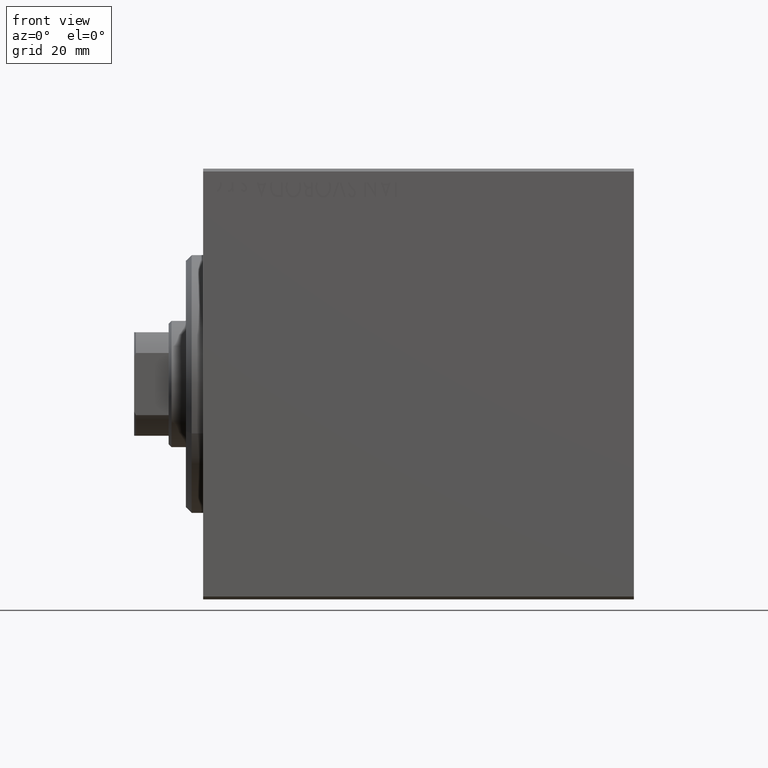
[diagram: clean part render]
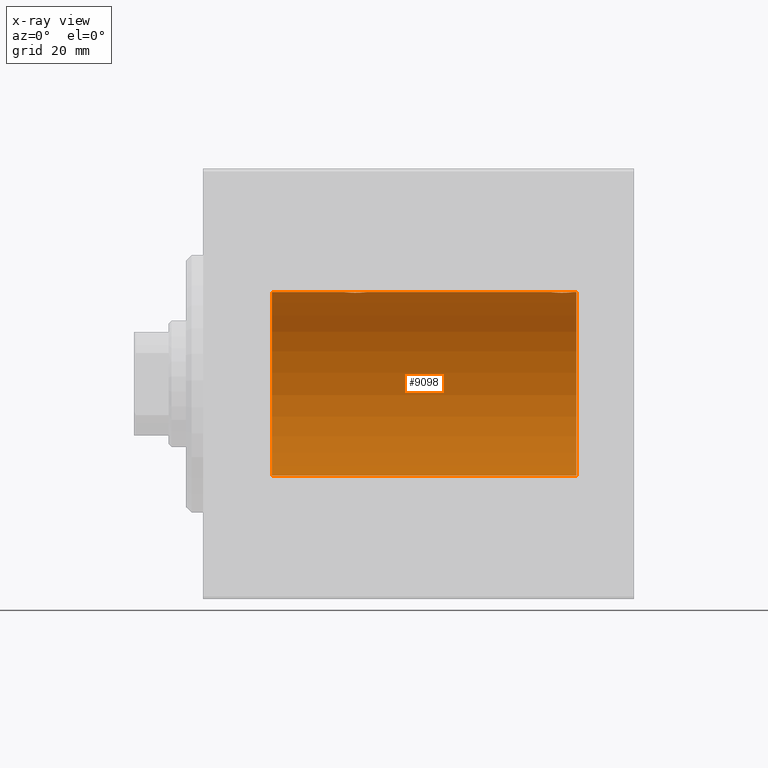
[diagram: x-ray — body ghosted, one internal face saturated and labeled with its STEP entity id]
A machine part, front view, then the same camera in x-ray: the body is ghosted and one INTERNAL B-rep face — a face not visible from any outside direction — is saturated and labeled: STEP entity #9098.
In plain terms, the highlighted cylindrical surface (partial cylindrical patch) has radius 16 mm, axis along (-1, -0, -0).
Its self-contained STEP definition (entity closure, byte-faithful):
#108 = CARTESIAN_POINT ( 'NONE',  ( 65.00000000000000000, 0.000000000000000000, 0.000000000000000000 ) ) ;
#368 = LINE ( 'NONE', #23722, #35566 ) ;
#507 = CARTESIAN_POINT ( 'NONE',  ( 27.02531756459404733, 1.947280337074166257, 15.88137861827786423 ) ) ;
#1265 = ORIENTED_EDGE ( 'NONE', *, *, #19076, .T. ) ;
#1481 = EDGE_CURVE ( 'NONE', #14752, #8152, #42652, .T. ) ;
#1622 = CARTESIAN_POINT ( 'NONE',  ( 26.37014691649502041, 2.000047931387144207, 15.87450182760079542 ) ) ;
#1660 = AXIS2_PLACEMENT_3D ( 'NONE', #30940, #41384, #21125 ) ;
#1694 = CARTESIAN_POINT ( 'NONE',  ( 60.60216273501104922, 0.6445079780200505537, 15.98747331501412816 ) ) ;
#2120 = CARTESIAN_POINT ( 'NONE',  ( 62.37014691649503817, 2.000047931387135325, 15.87450182760080253 ) ) ;
#2335 = CARTESIAN_POINT ( 'NONE',  ( 61.28032342557722245, 1.590393755195997016, 15.92092783521423272 ) ) ;
#3001 = DIRECTION ( 'NONE',  ( -1.000000000000000000, 0.000000000000000000, 0.000000000000000000 ) ) ;
#3169 = VECTOR ( 'NONE', #35447, 1000.000000000000000 ) ;
#3361 = CARTESIAN_POINT ( 'NONE',  ( 60.50000000000000711, 0.1305944228192292556, 15.99999999999999645 ) ) ;
#3564 = EDGE_LOOP ( 'NONE', ( #24956, #23020, #36615, #1265, #40063, #17977, #13601, #26405 ) ) ;
#4203 = CARTESIAN_POINT ( 'NONE',  ( 11.99999999999999645, 0.000000000000000000, 16.00000000000000000 ) ) ;
#4269 = AXIS2_PLACEMENT_3D ( 'NONE', #108, #3001, #43273 ) ;
#4727 = CARTESIAN_POINT ( 'NONE',  ( 25.61382242942730159, 1.797743958659259400, 15.89876304682112007 ) ) ;
#5601 = CARTESIAN_POINT ( 'NONE',  ( 24.56430947073870641, 0.5198215460038738689, 15.99206840425679665 ) ) ;
#5672 = CARTESIAN_POINT ( 'NONE',  ( 64.09051504852095604, 1.219564485341764648, 15.95382484008322344 ) ) ;
#5909 = CIRCLE ( 'NONE', #12287, 16.00000000000000000 ) ;
#6487 = DIRECTION ( 'NONE',  ( 0.000000000000000000, 0.000000000000000000, 1.000000000000000000 ) ) ;
#6636 = VERTEX_POINT ( 'NONE', #18046 ) ;
#6962 = CARTESIAN_POINT ( 'NONE',  ( 28.49999999999999645, -1.179009551424829015E-15, 16.00000000000000000 ) ) ;
#6971 = VERTEX_POINT ( 'NONE', #4203 ) ;
#7188 = CARTESIAN_POINT ( 'NONE',  ( 28.39758870055593221, 0.6452446332038169752, 15.98744362947834929 ) ) ;
#7610 = CARTESIAN_POINT ( 'NONE',  ( 65.00000000000000000, 0.000000000000000000, 16.00000000000000000 ) ) ;
#8152 = VERTEX_POINT ( 'NONE', #17001 ) ;
#8290 = CARTESIAN_POINT ( 'NONE',  ( 65.00000000000000000, 0.000000000000000000, 16.00000000000000000 ) ) ;
#8291 = CARTESIAN_POINT ( 'NONE',  ( 26.76191462762254858, 1.999903730784158284, 15.87451999516785861 ) ) ;
#8358 = CARTESIAN_POINT ( 'NONE',  ( 61.98086902289888656, 1.935876924222072359, 15.88247600692093187 ) ) ;
#8802 = CARTESIAN_POINT ( 'NONE',  ( 61.49688752964961935, 1.735145127817737887, 15.90580292899658410 ) ) ;
#9098 = ADVANCED_FACE ( 'NONE', ( #34288 ), #34727, .F. ) ;
#10961 = CARTESIAN_POINT ( 'NONE',  ( 28.48700524008413026, 0.2623312429553321667, 15.99836091803360105 ) ) ;
#11021 = VERTEX_POINT ( 'NONE', #21140 ) ;
#11388 = CARTESIAN_POINT ( 'NONE',  ( 24.50000000000000000, -2.739674480787312950E-23, 16.00000000000000000 ) ) ;
#11910 = CARTESIAN_POINT ( 'NONE',  ( 60.56430947073870641, 0.5198215460038713154, 15.99206840425679310 ) ) ;
#12269 = LINE ( 'NONE', #8290, #17020 ) ;
#12287 = AXIS2_PLACEMENT_3D ( 'NONE', #35962, #36168, #6487 ) ;
#12688 = LINE ( 'NONE', #15597, #3169 ) ;
#13147 = CARTESIAN_POINT ( 'NONE',  ( 64.43611326682061247, 0.5181437283162071417, 15.99211983514074653 ) ) ;
#13601 = ORIENTED_EDGE ( 'NONE', *, *, #26209, .T. ) ;
#14752 = VERTEX_POINT ( 'NONE', #7610 ) ;
#15171 = CARTESIAN_POINT ( 'NONE',  ( 25.28032342557722245, 1.590393755196002568, 15.92092783521424337 ) ) ;
#15527 = VERTEX_POINT ( 'NONE', #38829 ) ;
#15597 = CARTESIAN_POINT ( 'NONE',  ( 65.00000000000000000, 0.000000000000000000, 16.00000000000000000 ) ) ;
#15816 = CARTESIAN_POINT ( 'NONE',  ( 25.17924175171067347, 1.507649250492133275, 15.92908549642226745 ) ) ;
#16693 = CARTESIAN_POINT ( 'NONE',  ( 64.49999999999998579, 3.473195124181548729E-15, 16.00000000000000000 ) ) ;
#17001 = CARTESIAN_POINT ( 'NONE',  ( 65.00000000000000000, 1.959434878635765131E-15, -16.00000000000000000 ) ) ;
#17020 = VECTOR ( 'NONE', #39206, 1000.000000000000000 ) ;
#17977 = ORIENTED_EDGE ( 'NONE', *, *, #30539, .T. ) ;
#18046 = CARTESIAN_POINT ( 'NONE',  ( 64.49999999999998579, 3.473195124181548729E-15, 16.00000000000000000 ) ) ;
#18277 = CARTESIAN_POINT ( 'NONE',  ( 24.90998471899876776, 1.220169175415118490, 15.95377581882983797 ) ) ;
#18497 = CARTESIAN_POINT ( 'NONE',  ( 26.23748416992100729, 1.987008272775793394, 15.87616016863255552 ) ) ;
#18793 = CARTESIAN_POINT ( 'NONE',  ( 64.23568098498259360, 1.002241074716279989, 15.96895041604536125 ) ) ;
#18938 = CARTESIAN_POINT ( 'NONE',  ( 24.99262839687571258, 1.321075116345884704, 15.94564302722882942 ) ) ;
#19076 = EDGE_CURVE ( 'NONE', #6636, #11021, #30799, .T. ) ;
#19198 = B_SPLINE_CURVE_WITH_KNOTS ( 'NONE', 3,
 ( #6962, #41435, #10961, #24078, #7188, #20507, #20732, #24520, #30984, #34339, #21170, #507, #8291, #1622, #18497, #22288, #24964, #4727, #21628, #15171, #15816, #18938, #18277, #29397, #32326, #35225, #5601, #25408, #35893, #11388 ),
 .UNSPECIFIED., .F., .F.,
 ( 4, 2, 2, 2, 2, 2, 2, 2, 2, 2, 2, 2, 2, 2, 4 ),
 ( 1.717047458274812411E-18, 0.0003911894522871176005, 0.0007823789045742334664, 0.001173568356861349332, 0.001564757809148465198, 0.002347136713722698231, 0.003129515618296931697, 0.003520705070584047996, 0.003911894522871164730, 0.004303083975158281463, 0.004694273427445398196, 0.005085462879732514062, 0.005476652332019630795, 0.005867841784306747528, 0.006259031236593864261 ),
 .UNSPECIFIED. ) ;
#19224 = CARTESIAN_POINT ( 'NONE',  ( 64.00610712468244401, 1.322357532253814361, 15.94553003295877680 ) ) ;
#19891 = CARTESIAN_POINT ( 'NONE',  ( 28.49999999999999645, -1.179009551424829015E-15, 16.00000000000000000 ) ) ;
#20075 = DIRECTION ( 'NONE',  ( -1.000000000000000000, -0.000000000000000000, -0.000000000000000000 ) ) ;
#20507 = CARTESIAN_POINT ( 'NONE',  ( 28.29713414748220757, 0.8874076679346784013, 15.97583181162461408 ) ) ;
#20732 = CARTESIAN_POINT ( 'NONE',  ( 28.23568098498261136, 1.002241074716284208, 15.96895041604535770 ) ) ;
#21125 = DIRECTION ( 'NONE',  ( 0.000000000000000000, 0.000000000000000000, 1.000000000000000000 ) ) ;
#21140 = CARTESIAN_POINT ( 'NONE',  ( 60.50000000000000711, -2.739635037742051899E-23, 16.00000000000000000 ) ) ;
#21170 = CARTESIAN_POINT ( 'NONE',  ( 27.50659181559580801, 1.747750603376303058, 15.90457341008072412 ) ) ;
#21269 = EDGE_CURVE ( 'NONE', #14752, #6636, #12269, .T. ) ;
#21628 = CARTESIAN_POINT ( 'NONE',  ( 25.49688752964961225, 1.735145127817744548, 15.90580292899658410 ) ) ;
#22288 = CARTESIAN_POINT ( 'NONE',  ( 25.98086902289887234, 1.935876924222079465, 15.88247600692092476 ) ) ;
#22360 = CARTESIAN_POINT ( 'NONE',  ( 61.17924175171067702, 1.507649250492126392, 15.92908549642226745 ) ) ;
#23020 = ORIENTED_EDGE ( 'NONE', *, *, #1481, .F. ) ;
#23381 = CARTESIAN_POINT ( 'NONE',  ( 60.76517329325045580, 1.003662148334361515, 15.96885838080210362 ) ) ;
#23722 = CARTESIAN_POINT ( 'NONE',  ( 65.00000000000000000, 0.000000000000000000, 16.00000000000000000 ) ) ;
#24078 = CARTESIAN_POINT ( 'NONE',  ( 28.43611326682062312, 0.5181437283162076968, 15.99211983514074120 ) ) ;
#24520 = CARTESIAN_POINT ( 'NONE',  ( 28.09051504852098802, 1.219564485341770865, 15.95382484008322699 ) ) ;
#24956 = ORIENTED_EDGE ( 'NONE', *, *, #30447, .F. ) ;
#24964 = CARTESIAN_POINT ( 'NONE',  ( 25.85613031966986952, 1.898058445420888196, 15.88709929148890510 ) ) ;
#24989 = VECTOR ( 'NONE', #20075, 1000.000000000000000 ) ;
#25262 = CARTESIAN_POINT ( 'NONE',  ( 64.50000000000000000, 0.1322838750249258066, 16.00000000000000000 ) ) ;
#25408 = CARTESIAN_POINT ( 'NONE',  ( 24.51309075167874596, 0.2632563459770828063, 15.99834873924246814 ) ) ;
#25696 = CARTESIAN_POINT ( 'NONE',  ( 64.29713414748219691, 0.8874076679346744045, 15.97583181162461052 ) ) ;
#26209 = EDGE_CURVE ( 'NONE', #40122, #6971, #368, .T. ) ;
#26405 = ORIENTED_EDGE ( 'NONE', *, *, #35105, .T. ) ;
#26721 = CARTESIAN_POINT ( 'NONE',  ( 63.50659181559579736, 1.747750603376295508, 15.90457341008073122 ) ) ;
#28817 = CARTESIAN_POINT ( 'NONE',  ( 61.85613031966985176, 1.898058445420879536, 15.88709929148890510 ) ) ;
#29397 = CARTESIAN_POINT ( 'NONE',  ( 24.76517329325045580, 1.003662148334365956, 15.96885838080210362 ) ) ;
#30056 = CARTESIAN_POINT ( 'NONE',  ( 63.72956111739784291, 1.598790766515141515, 15.92099550861380841 ) ) ;
#30278 = CARTESIAN_POINT ( 'NONE',  ( 62.76191462762256634, 1.999903730784147626, 15.87451999516786216 ) ) ;
#30447 = EDGE_CURVE ( 'NONE', #8152, #15527, #33678, .T. ) ;
#30539 = EDGE_CURVE ( 'NONE', #42962, #40122, #19198, .T. ) ;
#30799 = B_SPLINE_CURVE_WITH_KNOTS ( 'NONE', 3,
 ( #16693, #25262, #36164, #13147, #38843, #25696, #18793, #5672, #19224, #30056, #26721, #39277, #30278, #2120, #42398, #8358, #28817, #32823, #8802, #2335, #22360, #40296, #35958, #23381, #35519, #1694, #11910, #32601, #3361, #41394 ),
 .UNSPECIFIED., .F., .F.,
 ( 4, 2, 2, 2, 2, 2, 2, 2, 2, 2, 2, 2, 2, 2, 4 ),
 ( 3.374792919033688175E-18, 0.0003911894522871187389, 0.0007823789045742341169, 0.001173568356861349766, 0.001564757809148464981, 0.002347136713722694761, 0.003129515618296925192, 0.003520705070584040624, 0.003911894522871155189, 0.004303083975158270187, 0.004694273427445384318, 0.005085462879732499317, 0.005476652332019614315, 0.005867841784306728446, 0.006259031236593842577 ),
 .UNSPECIFIED. ) ;
#30940 = CARTESIAN_POINT ( 'NONE',  ( 65.00000000000000000, 0.000000000000000000, 0.000000000000000000 ) ) ;
#30984 = CARTESIAN_POINT ( 'NONE',  ( 28.00610712468246177, 1.322357532253822576, 15.94553003295877325 ) ) ;
#32326 = CARTESIAN_POINT ( 'NONE',  ( 24.70250071394960756, 0.8866640484200106753, 15.97587307151817804 ) ) ;
#32601 = CARTESIAN_POINT ( 'NONE',  ( 60.51309075167875307, 0.2632563459770825287, 15.99834873924246459 ) ) ;
#32823 = CARTESIAN_POINT ( 'NONE',  ( 61.61382242942730159, 1.797743958659252073, 15.89876304682111652 ) ) ;
#33678 = LINE ( 'NONE', #37003, #24989 ) ;
#34288 = FACE_OUTER_BOUND ( 'NONE', #3564, .T. ) ;
#34339 = CARTESIAN_POINT ( 'NONE',  ( 27.72956111739784646, 1.598790766515150619, 15.92099550861380486 ) ) ;
#34727 = CYLINDRICAL_SURFACE ( 'NONE', #1660, 16.00000000000000000 ) ;
#35105 = EDGE_CURVE ( 'NONE', #6971, #15527, #5909, .T. ) ;
#35225 = CARTESIAN_POINT ( 'NONE',  ( 24.60216273501104922, 0.6445079780200552166, 15.98747331501412461 ) ) ;
#35447 = DIRECTION ( 'NONE',  ( -1.000000000000000000, -0.000000000000000000, -0.000000000000000000 ) ) ;
#35519 = CARTESIAN_POINT ( 'NONE',  ( 60.70250071394959690, 0.8866640484200045691, 15.97587307151817804 ) ) ;
#35566 = VECTOR ( 'NONE', #37737, 1000.000000000000000 ) ;
#35893 = CARTESIAN_POINT ( 'NONE',  ( 24.50000000000000711, 0.1305944228192306433, 16.00000000000000000 ) ) ;
#35958 = CARTESIAN_POINT ( 'NONE',  ( 60.90998471899877131, 1.220169175415113161, 15.95377581882983797 ) ) ;
#35962 = CARTESIAN_POINT ( 'NONE',  ( 11.99999999999999645, 0.000000000000000000, 0.000000000000000000 ) ) ;
#36164 = CARTESIAN_POINT ( 'NONE',  ( 64.48700524008410184, 0.2623312429553325553, 15.99836091803360283 ) ) ;
#36168 = DIRECTION ( 'NONE',  ( -1.000000000000000000, 0.000000000000000000, 0.000000000000000000 ) ) ;
#36416 = CARTESIAN_POINT ( 'NONE',  ( 24.50000000000000000, -2.739674480787312950E-23, 16.00000000000000000 ) ) ;
#36615 = ORIENTED_EDGE ( 'NONE', *, *, #21269, .T. ) ;
#37003 = CARTESIAN_POINT ( 'NONE',  ( 65.00000000000000000, 1.959434878635765131E-15, -16.00000000000000000 ) ) ;
#37737 = DIRECTION ( 'NONE',  ( -1.000000000000000000, -0.000000000000000000, -0.000000000000000000 ) ) ;
#38829 = CARTESIAN_POINT ( 'NONE',  ( 11.99999999999999645, 1.959434878635765131E-15, -16.00000000000000000 ) ) ;
#38843 = CARTESIAN_POINT ( 'NONE',  ( 64.39758870055592865, 0.6452446332038144217, 15.98744362947834929 ) ) ;
#39206 = DIRECTION ( 'NONE',  ( -1.000000000000000000, -0.000000000000000000, -0.000000000000000000 ) ) ;
#39277 = CARTESIAN_POINT ( 'NONE',  ( 63.02531756459404733, 1.947280337074156931, 15.88137861827787489 ) ) ;
#39482 = EDGE_CURVE ( 'NONE', #11021, #42962, #12688, .T. ) ;
#40063 = ORIENTED_EDGE ( 'NONE', *, *, #39482, .T. ) ;
#40122 = VERTEX_POINT ( 'NONE', #36416 ) ;
#40296 = CARTESIAN_POINT ( 'NONE',  ( 60.99262839687573745, 1.321075116345878930, 15.94564302722883653 ) ) ;
#41384 = DIRECTION ( 'NONE',  ( -1.000000000000000000, -0.000000000000000000, -0.000000000000000000 ) ) ;
#41394 = CARTESIAN_POINT ( 'NONE',  ( 60.50000000000000711, -2.739635037742051899E-23, 16.00000000000000000 ) ) ;
#41435 = CARTESIAN_POINT ( 'NONE',  ( 28.49999999999998579, 0.1322838750249258899, 15.99999999999999289 ) ) ;
#42398 = CARTESIAN_POINT ( 'NONE',  ( 62.23748416992101795, 1.987008272775784734, 15.87616016863256618 ) ) ;
#42652 = CIRCLE ( 'NONE', #4269, 16.00000000000000000 ) ;
#42962 = VERTEX_POINT ( 'NONE', #19891 ) ;
#43273 = DIRECTION ( 'NONE',  ( 0.000000000000000000, 0.000000000000000000, 1.000000000000000000 ) ) ;